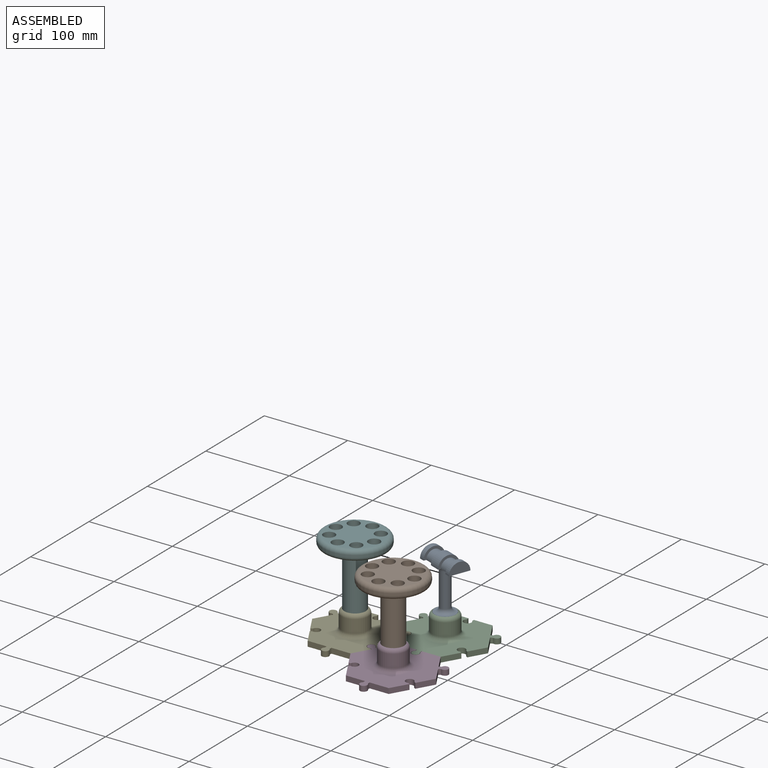
[diagram: assembled view]
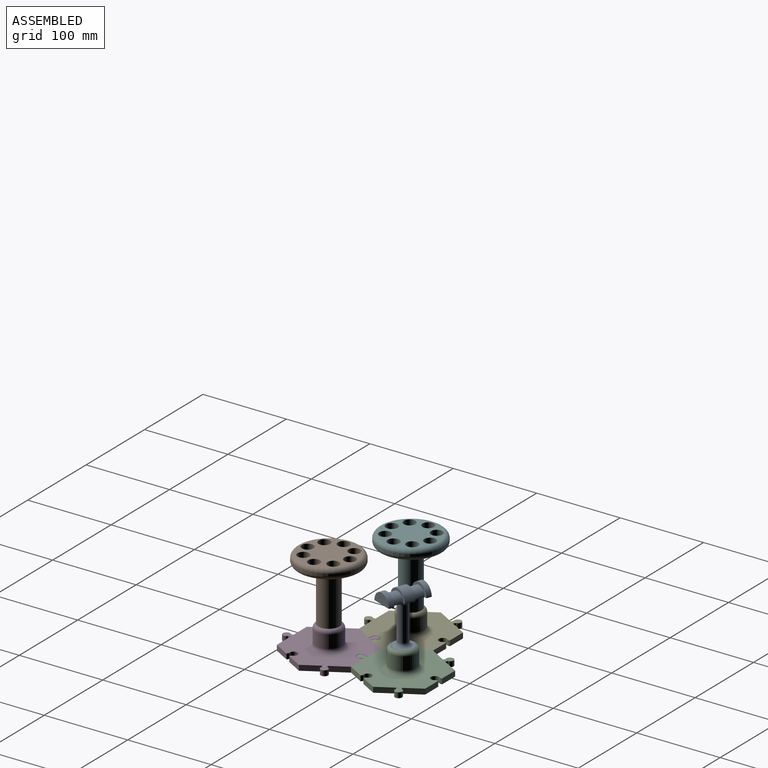
[diagram: assembled view, second angle]
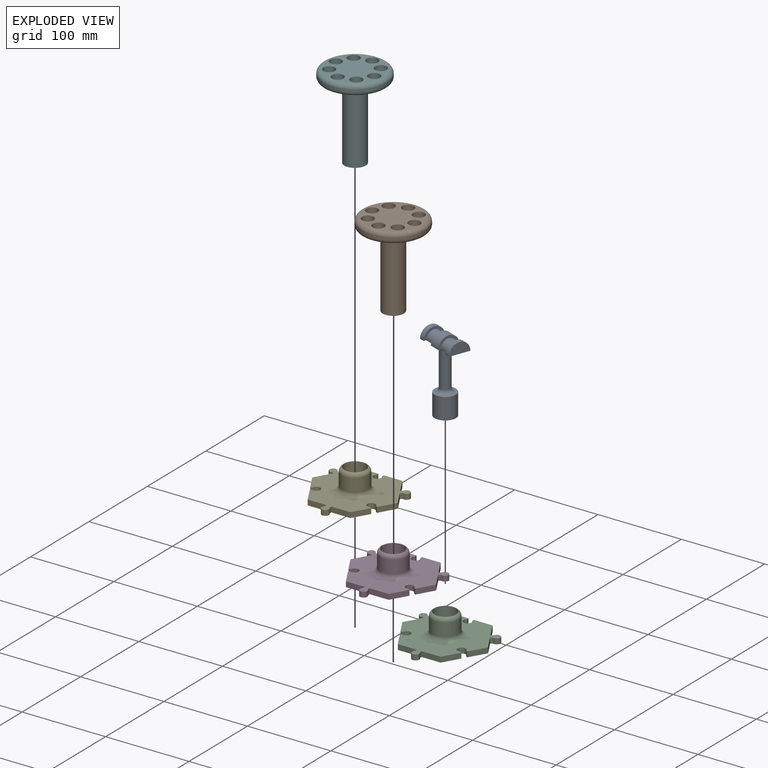
[diagram: exploded view]
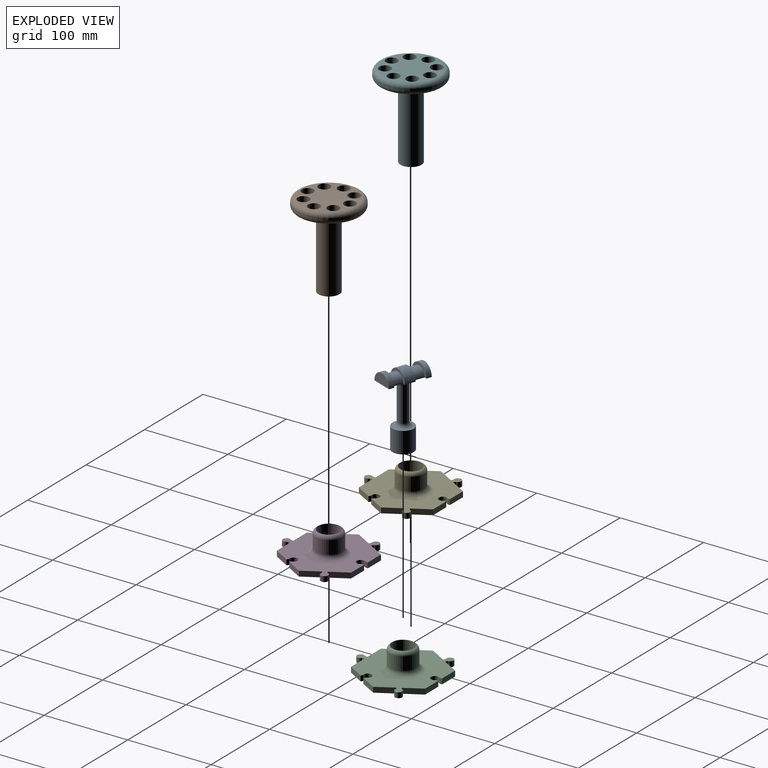
[diagram: exploded view, second angle]
ASSEMBLY  parts=6 mates=10
PART A: 18 faces, bbox 32.6x50.8x88.9 mm
  f0: cylinder r=12.7mm len=25.4mm, axis (0,1,0), area 253.4mm2, adj f1,f9,f17
  f1: plane 50.8x25.4mm, normal (0,0,-1), area 718.6mm2, adj f0,f2,f8,f9,f10,f11,f12,f13
  f2: cylinder r=12.7mm len=25.4mm, axis (0,1,0), area 506.7mm2, adj f1,f13,f16
  f3: cylinder r=12.7mm len=25.4mm, axis (0,0,-1), area 2026.8mm2, adj f4,f5
  f4: plane 25.4x25.4mm, normal (0,0,1), area 96.3mm2, adj f3,f7
  f5: plane 25.4x25.4mm, normal (0,0,-1), area 506.7mm2, adj f3
  f6: cylinder r=6.35mm len=40.64mm, axis (0,0,-1), area 1621.5mm2, adj f7,f11
  f7: torus R=11.43mm, axis (0,0,1), area 410.9mm2, adj f4,f6
  f8: cylinder r=12.7mm len=25.4mm, axis (0,1,0), area 253.4mm2, adj f1,f10,f14
  f9: plane 25.4x12.7mm, normal (0,-1,0), area 253.4mm2, adj f0,f1
  f10: plane 25.4x12.7mm, normal (0,1,0), area 253.4mm2, adj f1,f8
  f11: torus R=11.43mm, axis (0,0,1), area 410.9mm2, adj f1,f6
  f12: cylinder r=9.53mm len=19.05mm, axis (0,1,0), area 380mm2, adj f1,f13,f14
  f13: plane 25.4x12.7mm, normal (0,1,0), area 110.8mm2, adj f1,f2,f12
  f14: plane 25.4x12.7mm, normal (0,-1,0), area 110.8mm2, adj f1,f8,f12
  f15: cylinder r=9.53mm len=19.05mm, axis (0,-1,0), area 380mm2, adj f1,f16,f17
  f16: plane 25.4x12.7mm, normal (0,-1,0), area 110.8mm2, adj f1,f2,f15
  f17: plane 25.4x12.7mm, normal (0,1,0), area 110.8mm2, adj f0,f1,f15
PART B: 16 faces, bbox 82.5x82.5x101.6 mm
  f0: cylinder r=6.99mm len=13.97mm, axis (0,0,-1), area 557.4mm2, adj f9,f10
  f1: cylinder r=6.99mm len=13.97mm, axis (0,0,-1), area 557.4mm2, adj f9,f10
  f2: cylinder r=6.99mm len=13.97mm, axis (0,0,-1), area 557.4mm2, adj f9,f10
  f3: cylinder r=6.99mm len=13.97mm, axis (0,0,-1), area 557.4mm2, adj f9,f10
  f4: cylinder r=6.99mm len=13.97mm, axis (0,0,-1), area 557.4mm2, adj f9,f10
  f5: cylinder r=6.99mm len=13.97mm, axis (0,0,-1), area 557.4mm2, adj f9,f10
  f6: cylinder r=6.99mm len=13.97mm, axis (0,0,-1), area 557.4mm2, adj f9,f10
  f7: cylinder r=6.99mm len=13.97mm, axis (0,0,-1), area 557.4mm2, adj f9,f10
  f8: cylinder r=38.1mm len=76.2mm, axis (0,0,-1), area 608mm2, adj f13,f14
  f9: plane 66.04x66.04mm, normal (0,0,1), area 2199.1mm2, adj f0,f1,f2,f3,f4,f5,f6,f7
  f10: plane 66.04x66.04mm, normal (0,0,-1), area 1206mm2, adj f0,f1,f2,f3,f4,f5,f6,f7
  f11: cylinder r=12.7mm len=83.82mm, axis (0,0,1), area 6688.5mm2, adj f12,f15
  f12: plane 25.4x25.4mm, normal (0,0,-1), area 506.7mm2, adj f11
  f13: torus R=33.02mm, axis (0,0,1), area 1817.7mm2, adj f8,f10
  f14: torus R=33.02mm, axis (0,0,1), area 1817.7mm2, adj f8,f9
  f15: torus R=17.78mm, axis (0,0,1), area 729.3mm2, adj f10,f11
PART C: 37 faces, bbox 102.7x99.6x32.1 mm
  f0: plane 19.81x11.43mm, normal (-0.87,0.5,0), area 145.2mm2, adj f8,f12,f13,f32
  f1: plane 22.87x6.35mm, normal (0,-1,0), area 145.2mm2, adj f6,f12,f13,f29
  f2: plane 19.81x11.43mm, normal (0.87,0.5,0), area 145.2mm2, adj f10,f12,f13,f28
  f3: plane 19.48x11.24mm, normal (-0.87,-0.5,0), area 142.8mm2, adj f7,f12,f13,f23
  f4: plane 22.49x6.35mm, normal (0,1,0), area 142.8mm2, adj f9,f12,f13,f17
  f5: plane 19.48x11.24mm, normal (0.87,-0.5,0), area 142.8mm2, adj f11,f12,f13,f20
  f6: plane 19.48x11.24mm, normal (-0.87,-0.5,0), area 142.8mm2, adj f1,f12,f13,f24
  f7: plane 19.81x11.43mm, normal (-0.87,0.5,0), area 145.2mm2, adj f3,f12,f13,f33
  f8: plane 22.49x6.35mm, normal (0,1,0), area 142.8mm2, adj f0,f12,f13,f18
  f9: plane 19.81x11.43mm, normal (0.87,0.5,0), area 145.2mm2, adj f4,f12,f13,f26
  f10: plane 19.48x11.24mm, normal (0.87,-0.5,0), area 142.8mm2, adj f2,f12,f13,f21
  f11: plane 22.87x6.35mm, normal (0,-1,0), area 145.2mm2, adj f5,f12,f13,f30
  f12: plane 102.65x99.63mm, normal (0,0,1), area 5411.9mm2, adj f0,f1,f2,f3,f4,f5,f6,f7
  f13: plane 102.65x99.63mm, normal (0,0,-1), area 6812.4mm2, adj f0,f1,f2,f3,f4,f5,f6,f7
  f14: cylinder r=12.86mm len=25.72mm, axis (0,0,-1), area 2052.2mm2, adj f16,f35
  f15: cylinder r=16.03mm len=32.07mm, axis (0,0,-1), area 1572.7mm2, adj f35,f36
  f16: plane 25.72x25.72mm, normal (0,0,1), area 519.5mm2, adj f14
  f17: plane 6.35x2.8mm, normal (-1,0,0), area 17.8mm2, adj f4,f12,f13,f19
  f18: plane 6.35x2.8mm, normal (1,0,0), area 17.8mm2, adj f8,f12,f13,f19
  f19: cylinder r=4.76mm len=9.53mm, axis (0,0,-1), area 145.9mm2, adj f12,f13,f17,f18
  f20: plane 6.35x2.43mm, normal (0.5,0.87,0), area 17.8mm2, adj f5,f12,f13,f22
  f21: plane 6.35x2.43mm, normal (-0.5,-0.87,0), area 17.8mm2, adj f10,f12,f13,f22
  f22: cylinder r=4.76mm len=9.53mm, axis (0,0,-1), area 145.9mm2, adj f12,f13,f20,f21
  f23: plane 6.35x2.43mm, normal (0.5,-0.87,0), area 17.8mm2, adj f3,f12,f13,f25
  f24: plane 6.35x2.43mm, normal (-0.5,0.87,0), area 17.8mm2, adj f6,f12,f13,f25
  f25: cylinder r=4.76mm len=9.53mm, axis (0,0,-1), area 145.9mm2, adj f12,f13,f23,f24
  f26: plane 6.35x2.58mm, normal (-0.5,0.87,0), area 18.9mm2, adj f9,f12,f13,f27
  f27: cylinder r=4.38mm len=8.76mm, axis (0,0,-1), area 136.3mm2, adj f12,f13,f26,f28
  f28: plane 6.35x2.58mm, normal (0.5,-0.87,0), area 18.9mm2, adj f2,f12,f13,f27
  f29: plane 6.35x2.98mm, normal (-1,0,0), area 18.9mm2, adj f1,f12,f13,f31
  f30: plane 6.35x2.98mm, normal (1,0,0), area 18.9mm2, adj f11,f12,f13,f31
  f31: cylinder r=4.38mm len=8.76mm, axis (0,0,-1), area 136.3mm2, adj f12,f13,f29,f30
  f32: plane 6.35x2.58mm, normal (0.5,0.87,0), area 18.9mm2, adj f0,f12,f13,f34
  f33: plane 6.35x2.58mm, normal (-0.5,-0.87,0), area 18.9mm2, adj f7,f12,f13,f34
  f34: cylinder r=4.38mm len=8.76mm, axis (0,0,-1), area 136.3mm2, adj f12,f13,f32,f33
  f35: torus R=10.95mm, axis (0,0,1), area 565.1mm2, adj f14,f15
  f36: torus R=21.11mm, axis (0,0,-1), area 896.4mm2, adj f12,f15
PART D: same geometry as C
PART E: same geometry as C
PART F: same geometry as B
PLACE A rot(axis=(0,0,1),69.1deg) t=(2.7,91.93,40.25)mm
PLACE B rot(axis=(0,0,-1),0deg) t=(2.7,3.03,40.25)mm
PLACE C rot(axis=(0,0,-1),0deg) t=(2.7,91.93,40.25)mm
PLACE D rot(axis=(0,0,-1),0deg) t=(2.7,3.03,40.25)mm
PLACE E t=(-74.29,47.48,40.25)mm fixed
PLACE F rot(axis=(0,0,-1),52.1deg) t=(-74.29,47.48,43.97)mm
MATE cylindrical B.f8 <-> D.f14  axis (0,0,1) through (2.7,3.03,-6.74)mm
MATE pin_slot C.f25 <-> E.f27  axis (0,0,-1) through (-30.3,72.88,-55)mm
MATE planar A.f3 <-> C.f14  axis (0,0,-1) through (2.7,91.93,-48.65)mm
MATE cylindrical D.f34 <-> E.f22  axis (0,0,-1) through (-41.3,28.43,-55)mm
MATE cylindrical A.f3 <-> C.f14  axis (0,0,-1) through (2.7,91.93,-48.65)mm
MATE planar D.f14 <-> C.f14  axis (0,0,1) through (2.7,3.03,-48.65)mm
MATE planar B.f8 <-> D.f14  axis (0,0,-1) through (2.7,3.03,-48.65)mm
MATE planar C.f3 <-> E.f9  axis (-0.87,-0.5,0) through (-43.01,82.19,-51.82)mm
MATE cylindrical F.f8 <-> E.f14  axis (0,0,1) through (-74.29,47.48,-3.02)mm
MATE planar E.f10 <-> D.f0  axis (0.87,-0.5,0) through (-28.59,37.74,-51.82)mm
